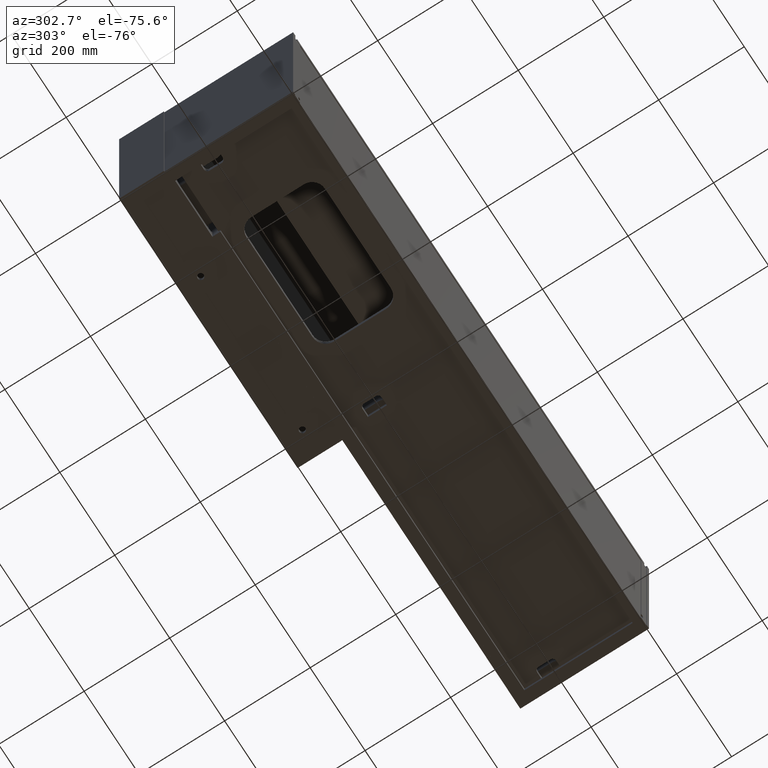
[diagram: clean part render]
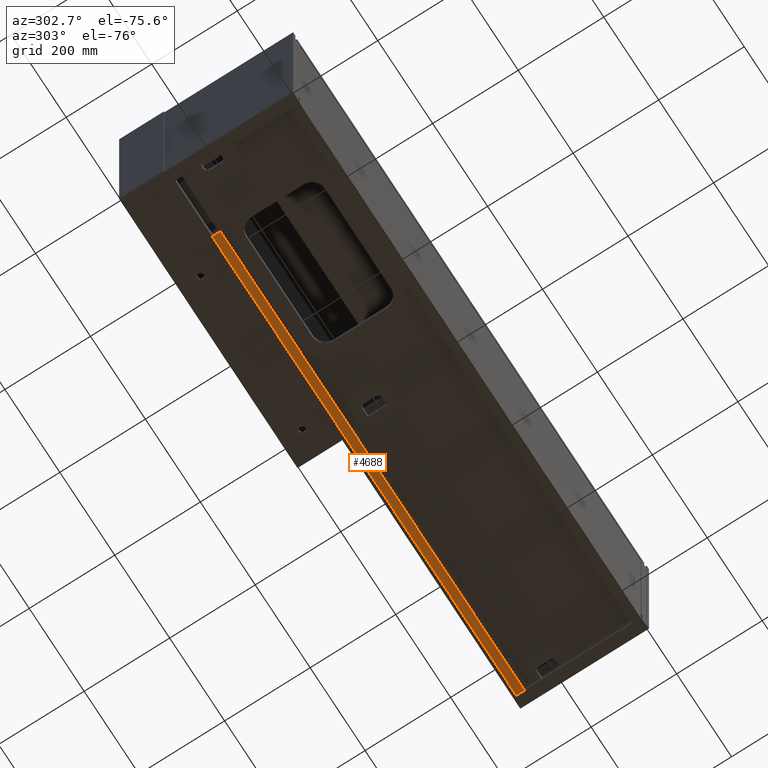
[diagram: same view with one face highlighted and labeled with its STEP entity id]
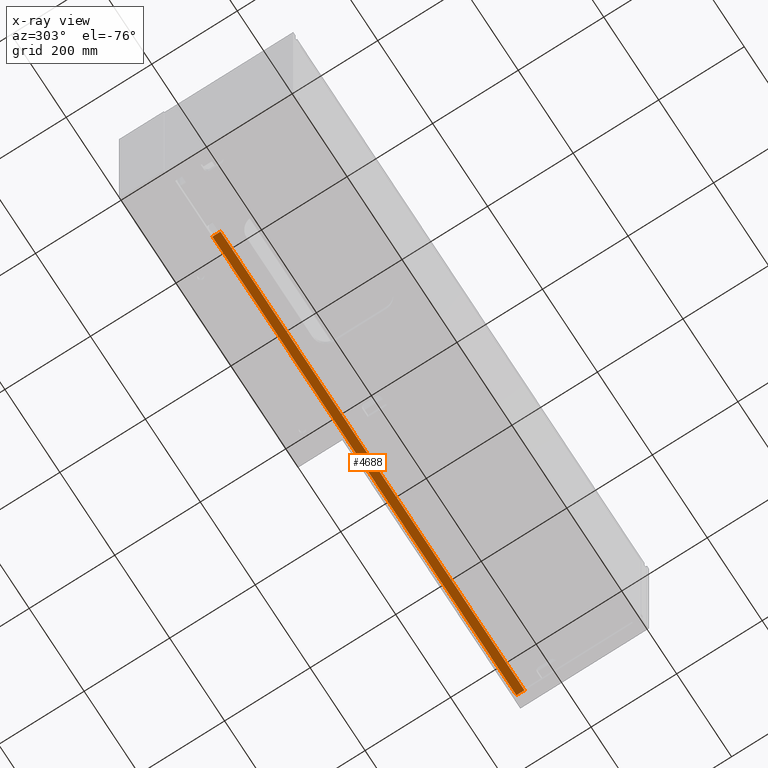
[diagram: x-ray of the same camera — body ghosted, the highlighted face saturated]
A machine part, auxiliary view. The second image highlights one B-rep face of the part: STEP entity #4688.
The next image is the same camera in x-ray: the body ghosted, the highlighted face saturated — about 0% of this face is hidden behind the body in this view.
In plain terms, the highlighted planar face has unit normal (0, 0, -1).
Its self-contained STEP definition (entity closure, byte-faithful):
#366 = LINE ( 'NONE', #5348, #12059 ) ;
#1517 = LINE ( 'NONE', #6517, #13111 ) ;
#1868 = VERTEX_POINT ( 'NONE', #13000 ) ;
#2341 = AXIS2_PLACEMENT_3D ( 'NONE', #2896, #7912, #12871 ) ;
#2896 = CARTESIAN_POINT ( 'NONE',  ( 28.99999999999999645, 272.9999999999999432, -470.0000000000000000 ) ) ;
#3364 = VERTEX_POINT ( 'NONE', #7000 ) ;
#4303 = VECTOR ( 'NONE', #9911, 1000.000000000000000 ) ;
#4688 = ADVANCED_FACE ( 'NONE', ( #9140 ), #14090, .T. ) ;
#4818 = DIRECTION ( 'NONE',  ( -0.0000000000000000000, -1.000000000000000000, -0.0000000000000000000 ) ) ;
#4896 = CARTESIAN_POINT ( 'NONE',  ( 28.99999999999999645, 272.9999999999999432, -470.0000000000000000 ) ) ;
#5348 = CARTESIAN_POINT ( 'NONE',  ( 28.99999999999999645, 292.0000000000000000, -470.0000000000000000 ) ) ;
#5448 = ORIENTED_EDGE ( 'NONE', *, *, #7289, .F. ) ;
#6102 = ORIENTED_EDGE ( 'NONE', *, *, #14025, .T. ) ;
#6517 = CARTESIAN_POINT ( 'NONE',  ( 1271.000000000000455, 272.9999999999999432, -470.0000000000000000 ) ) ;
#7000 = CARTESIAN_POINT ( 'NONE',  ( 164.0000000000000000, 292.0000000000000000, -470.0000000000001705 ) ) ;
#7289 = EDGE_CURVE ( 'NONE', #3364, #12977, #11038, .T. ) ;
#7912 = DIRECTION ( 'NONE',  ( 0.0000000000000000000, 0.0000000000000000000, -1.000000000000000000 ) ) ;
#8905 = VECTOR ( 'NONE', #4818, 1000.000000000000000 ) ;
#8954 = CARTESIAN_POINT ( 'NONE',  ( 164.0000000000000000, 272.9999999999999432, -470.0000000000001705 ) ) ;
#9140 = FACE_OUTER_BOUND ( 'NONE', #14531, .T. ) ;
#9283 = ORIENTED_EDGE ( 'NONE', *, *, #10807, .F. ) ;
#9911 = DIRECTION ( 'NONE',  ( -1.000000000000000000, -0.0000000000000000000, -0.0000000000000000000 ) ) ;
#10350 = DIRECTION ( 'NONE',  ( -1.000000000000000000, -0.0000000000000000000, -0.0000000000000000000 ) ) ;
#10673 = CARTESIAN_POINT ( 'NONE',  ( 1271.000000000000455, 272.9999999999999432, -470.0000000000000000 ) ) ;
#10807 = EDGE_CURVE ( 'NONE', #10980, #1868, #1517, .T. ) ;
#10980 = VERTEX_POINT ( 'NONE', #10673 ) ;
#11038 = LINE ( 'NONE', #15994, #8905 ) ;
#11214 = EDGE_CURVE ( 'NONE', #1868, #3364, #366, .T. ) ;
#11504 = DIRECTION ( 'NONE',  ( 0.0000000000000000000, 1.000000000000000000, 0.0000000000000000000 ) ) ;
#12059 = VECTOR ( 'NONE', #10350, 1000.000000000000000 ) ;
#12871 = DIRECTION ( 'NONE',  ( -1.000000000000000000, 0.0000000000000000000, -0.0000000000000000000 ) ) ;
#12977 = VERTEX_POINT ( 'NONE', #8954 ) ;
#13000 = CARTESIAN_POINT ( 'NONE',  ( 1271.000000000000455, 292.0000000000000000, -470.0000000000000000 ) ) ;
#13111 = VECTOR ( 'NONE', #11504, 1000.000000000000000 ) ;
#13397 = ORIENTED_EDGE ( 'NONE', *, *, #11214, .F. ) ;
#14025 = EDGE_CURVE ( 'NONE', #10980, #12977, #16077, .T. ) ;
#14090 = PLANE ( 'NONE',  #2341 ) ;
#14531 = EDGE_LOOP ( 'NONE', ( #5448, #13397, #9283, #6102 ) ) ;
#15994 = CARTESIAN_POINT ( 'NONE',  ( 164.0000000000000000, 493.8043607061056832, -470.0000000000001705 ) ) ;
#16077 = LINE ( 'NONE', #4896, #4303 ) ;